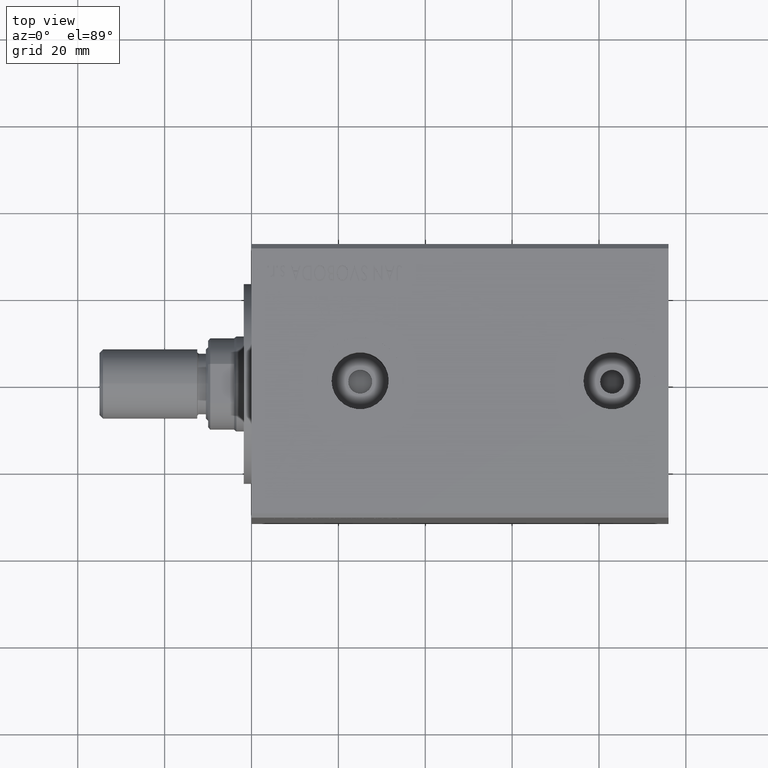
[diagram: clean part render]
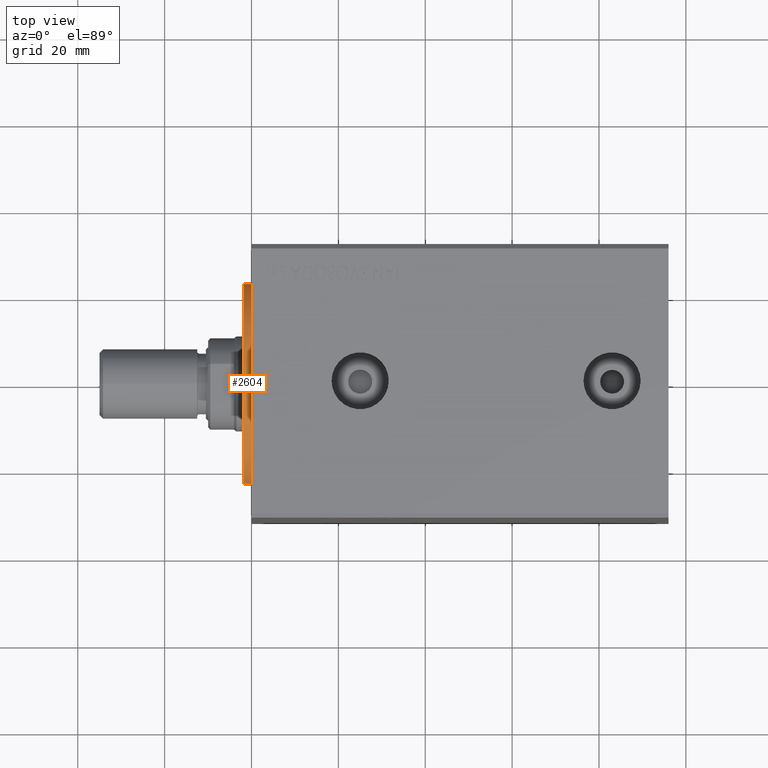
[diagram: same view with one face highlighted and labeled with its STEP entity id]
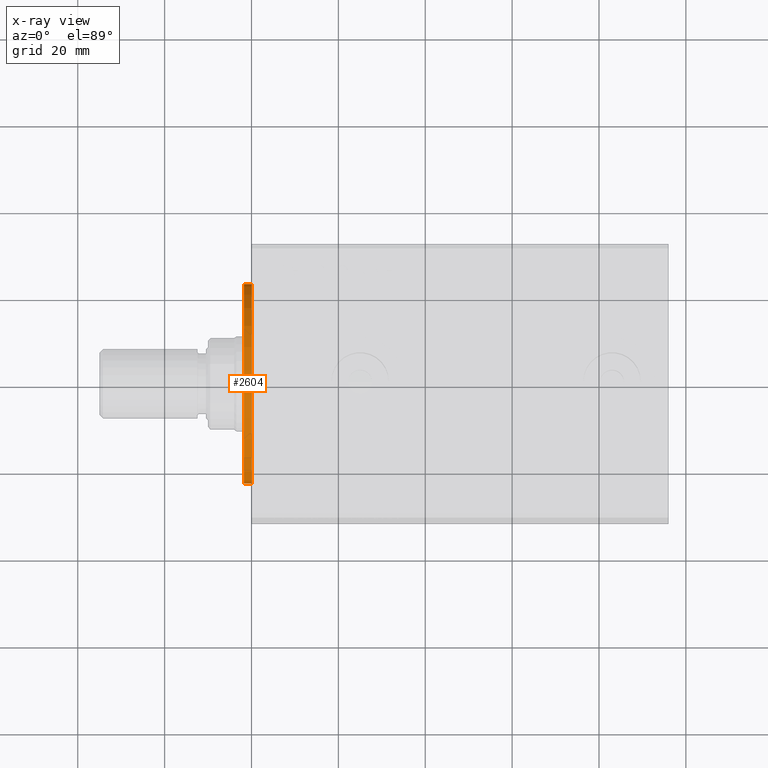
[diagram: x-ray of the same camera — body ghosted, the highlighted face saturated]
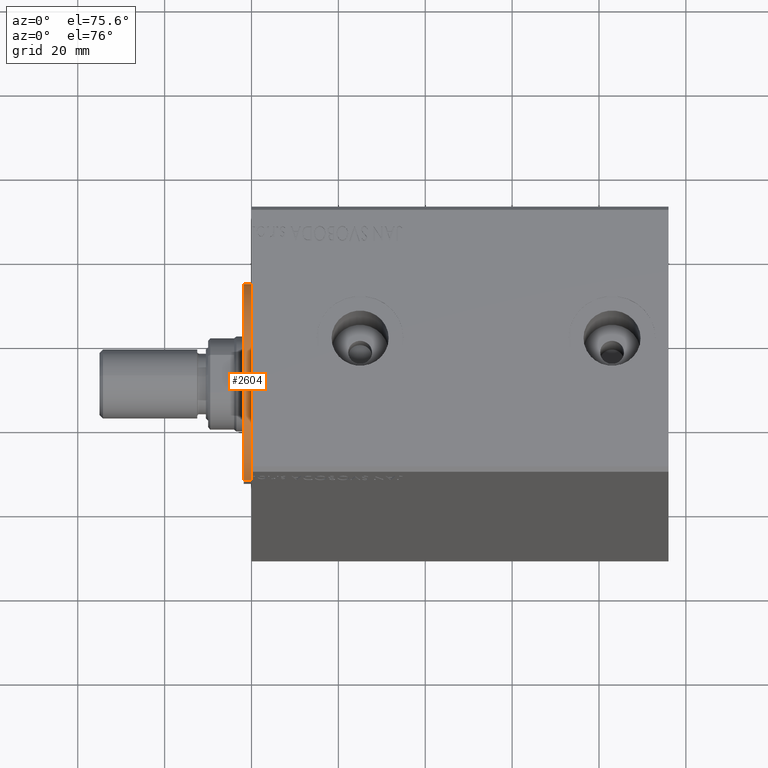
[diagram: same view with one face highlighted and labeled with its STEP entity id]
A machine part, top view. The second image highlights one B-rep face of the part: STEP entity #2604.
The next image is the same camera in x-ray: the body ghosted, the highlighted face saturated — about 0% of this face is hidden behind the body in this view.
A second angle (auxiliary view) of the same face is appended — the face is thin or edge-on in the first view.
In plain terms, the highlighted cylindrical surface (partial cylindrical patch) has radius 23 mm, axis along (1, -0, 0).
Its self-contained STEP definition (entity closure, byte-faithful):
#282 = DIRECTION ( 'NONE',  ( -0.000000000000000000, -0.000000000000000000, -1.000000000000000000 ) ) ;
#2604 = ADVANCED_FACE ( 'NONE', ( #18730 ), #32014, .T. ) ;
#2882 = CARTESIAN_POINT ( 'NONE',  ( 23.00000000000000000, 2.816687638038912352E-15, 72.79999999999998295 ) ) ;
#3995 = ORIENTED_EDGE ( 'NONE', *, *, #37774, .F. ) ;
#7502 = ORIENTED_EDGE ( 'NONE', *, *, #22554, .T. ) ;
#7932 = DIRECTION ( 'NONE',  ( -0.000000000000000000, -0.000000000000000000, -1.000000000000000000 ) ) ;
#9359 = AXIS2_PLACEMENT_3D ( 'NONE', #29559, #43281, #16502 ) ;
#9367 = DIRECTION ( 'NONE',  ( -0.000000000000000000, -0.000000000000000000, -1.000000000000000000 ) ) ;
#10889 = EDGE_LOOP ( 'NONE', ( #3995, #21409, #7502, #30867 ) ) ;
#11021 = CARTESIAN_POINT ( 'NONE',  ( 0.000000000000000000, 0.000000000000000000, 71.00000000000000000 ) ) ;
#11418 = AXIS2_PLACEMENT_3D ( 'NONE', #11021, #17553, #42053 ) ;
#13183 = LINE ( 'NONE', #16338, #14178 ) ;
#13251 = VERTEX_POINT ( 'NONE', #18027 ) ;
#13813 = LINE ( 'NONE', #16971, #32954 ) ;
#14178 = VECTOR ( 'NONE', #9367, 1000.000000000000000 ) ;
#14914 = VERTEX_POINT ( 'NONE', #44121 ) ;
#15125 = DIRECTION ( 'NONE',  ( -1.000000000000000000, 0.000000000000000000, 0.000000000000000000 ) ) ;
#15935 = AXIS2_PLACEMENT_3D ( 'NONE', #18286, #7932, #15125 ) ;
#16338 = CARTESIAN_POINT ( 'NONE',  ( 23.00000000000000000, 2.816687638038912352E-15, 72.79999999999998295 ) ) ;
#16502 = DIRECTION ( 'NONE',  ( 1.000000000000000000, 0.000000000000000000, 0.000000000000000000 ) ) ;
#16971 = CARTESIAN_POINT ( 'NONE',  ( -23.00000000000000000, 0.000000000000000000, 72.79999999999998295 ) ) ;
#17553 = DIRECTION ( 'NONE',  ( 0.000000000000000000, 0.000000000000000000, 1.000000000000000000 ) ) ;
#18027 = CARTESIAN_POINT ( 'NONE',  ( 23.00000000000000000, 2.816687638038912352E-15, 71.00000000000000000 ) ) ;
#18286 = CARTESIAN_POINT ( 'NONE',  ( 0.000000000000000000, 0.000000000000000000, 72.79999999999998295 ) ) ;
#18730 = FACE_OUTER_BOUND ( 'NONE', #10889, .T. ) ;
#21409 = ORIENTED_EDGE ( 'NONE', *, *, #24326, .F. ) ;
#22086 = VERTEX_POINT ( 'NONE', #2882 ) ;
#22554 = EDGE_CURVE ( 'NONE', #14914, #23669, #13813, .T. ) ;
#23669 = VERTEX_POINT ( 'NONE', #27946 ) ;
#24326 = EDGE_CURVE ( 'NONE', #14914, #22086, #30183, .T. ) ;
#27946 = CARTESIAN_POINT ( 'NONE',  ( -23.00000000000000000, 0.000000000000000000, 71.00000000000000000 ) ) ;
#29559 = CARTESIAN_POINT ( 'NONE',  ( 0.000000000000000000, 0.000000000000000000, 72.79999999999998295 ) ) ;
#30109 = CIRCLE ( 'NONE', #11418, 23.00000000000000000 ) ;
#30183 = CIRCLE ( 'NONE', #9359, 23.00000000000000000 ) ;
#30867 = ORIENTED_EDGE ( 'NONE', *, *, #42262, .T. ) ;
#32014 = CYLINDRICAL_SURFACE ( 'NONE', #15935, 23.00000000000000000 ) ;
#32954 = VECTOR ( 'NONE', #282, 1000.000000000000000 ) ;
#37774 = EDGE_CURVE ( 'NONE', #22086, #13251, #13183, .T. ) ;
#42053 = DIRECTION ( 'NONE',  ( 1.000000000000000000, 0.000000000000000000, 0.000000000000000000 ) ) ;
#42262 = EDGE_CURVE ( 'NONE', #23669, #13251, #30109, .T. ) ;
#43281 = DIRECTION ( 'NONE',  ( 0.000000000000000000, 0.000000000000000000, 1.000000000000000000 ) ) ;
#44121 = CARTESIAN_POINT ( 'NONE',  ( -23.00000000000000000, 0.000000000000000000, 72.79999999999998295 ) ) ;